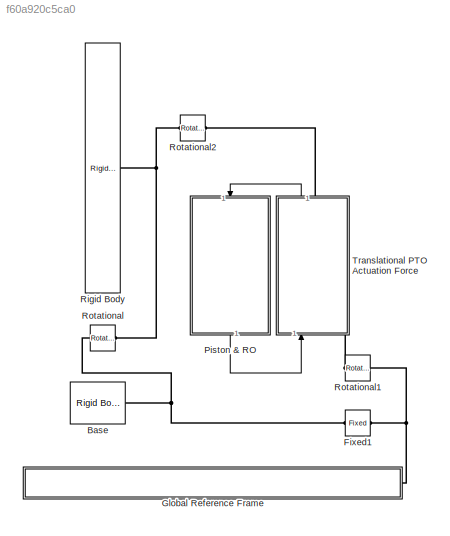
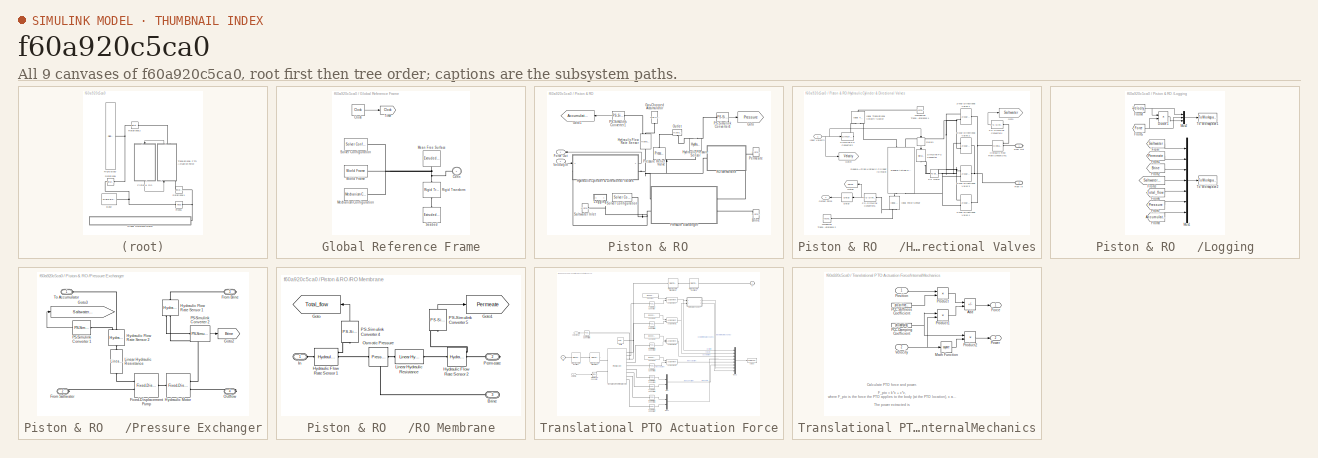
[diagram: thumbnail index - all 9 canvases of the model, root first then tree order]
MODEL slx_f60a920c5ca0
KIND model
CONFIG AbsTol = 1e-3
CONFIG EnableMultiTasking = on
CONFIG FixedStep = 0.01
CONFIG MaxStep = 0.01
CONFIG MinStep = auto
CONFIG RelTol = 1e-3
CONFIG SampleTimeConstraint = Unconstrained
CONFIG SolverName = ode4
CONFIG StartTime = 0
CONFIG StopTime = 300
BLOCK [Reference] Base  REF=WECSim_Lib_Body_Elements/Rigid Body
  AttributesFormatString = %<body>
  Ports = [0, 0, 0, 0, 0, 0, 1]
  SourceBlock = WECSim_Lib_Body_Elements/Rigid Body
  SourceProductName = WEC-Sim
  SourceType = Rigid Body
BLOCK [Reference] Fixed1  REF=WECSim_Lib_Constraints/Fixed
  AttributesFormatString = %<constraint>
  Ports = [0, 0, 0, 0, 0, 1, 1]
  SourceBlock = WECSim_Lib_Constraints/Fixed
  SourceProductName = WEC-Sim
  SourceType = Constraints
BLOCK [SubSystem] Global Reference Frame
  AncestorBlock = WECSim_Lib/Frames/Global Reference Frame
  NameLocation = top
  Ports = [0, 0, 0, 0, 0, 0, 1]
  RequestExecContextInheritance = off
BLOCK [Clock] Global Reference Frame/Clock
BLOCK [PMIOPort] Global Reference Frame/Conn
  Side = Right
BLOCK [Reference] Global Reference Frame/Mean Free Surface  REF=sm_lib/Body Elements/Extruded Solid
  NameLocation = right
  Ports = [0, 0, 0, 0, 0, 0, 1]
  SourceBlock = sm_lib/Body Elements/Extruded Solid
  SourceProductBaseCode = MS
  SourceType = Extruded Solid
BLOCK [Reference] Global Reference Frame/Mechanism Configuration  REF=sm_lib/Utilities/Mechanism
Configuration
  Ports = [0, 0, 0, 0, 0, 0, 1]
  SourceBlock = sm_lib/Utilities/Mechanism\nConfiguration
  SourceProductBaseCode = MS
  SourceType = Mechanism\nConfiguration
BLOCK [Reference] Global Reference Frame/Rigid Transform  REF=sm_lib/Frames and
Transforms/Rigid
Transform
  NameLocation = right
  Ports = [0, 0, 0, 0, 0, 1, 1]
  SourceBlock = sm_lib/Frames and\nTransforms/Rigid\nTransform
  SourceProductBaseCode = MS
  SourceType = Rigid\nTransform
BLOCK [Reference] Global Reference Frame/Seabed  REF=sm_lib/Body Elements/Extruded Solid
  NameLocation = right
  Ports = [0, 0, 0, 0, 0, 0, 1]
  SourceBlock = sm_lib/Body Elements/Extruded Solid
  SourceProductBaseCode = MS
  SourceType = Extruded Solid
BLOCK [Reference] Global Reference Frame/Solver Configuration  REF=nesl_utility/Solver
Configuration
  Ports = [0, 0, 0, 0, 0, 0, 1]
  SourceBlock = nesl_utility/Solver\nConfiguration
  SourceProductBaseCode = PW,SS
  SourceType = Solver\nConfiguration
BLOCK [Goto] Global Reference Frame/Time
  GotoTag = Clock
  TagVisibility = global
BLOCK [Reference] Global Reference Frame/World Frame  REF=sm_lib/Frames and
Transforms/World Frame
  Ports = [0, 0, 0, 0, 0, 0, 1]
  SourceBlock = sm_lib/Frames and\nTransforms/World Frame
  SourceProductBaseCode = MS
  SourceType = World Frame
BLOCK [SubSystem] Piston & RO   
  NameLocation = left
  Ports = [1, 1]
  RequestExecContextInheritance = off
BLOCK [Reference] Piston & RO   /Brine   REF=fl_lib/Hydraulic/Hydraulic Elements/Hydraulic Reference
  Ports = [0, 0, 0, 0, 0, 1]
  SourceBlock = fl_lib/Hydraulic/Hydraulic Elements/Hydraulic Reference
  SourceProductBaseCode = SS
  SourceType = Hydraulic Reference
BLOCK [Outport] Piston & RO   /Force Out
  NameLocation = top
  VectorParamsAs1DForOutWhenUnconnected = off
BLOCK [Reference] Piston & RO   /Gas-Charged Accumulator  REF=sh_lib/Accumulators/Gas-Charged
Accumulator
  NameLocation = right
  Ports = [0, 0, 0, 0, 0, 0, 1]
  SourceBlock = sh_lib/Accumulators/Gas-Charged\nAccumulator
  SourceProductBaseCode = SH
  SourceType = Gas-Charged\nAccumulator
BLOCK [Goto] Piston & RO   /Goto
  GotoTag = Pressure
  TagVisibility = global
BLOCK [Goto] Piston & RO   /Goto1
  GotoTag = Accumulator
  TagVisibility = global
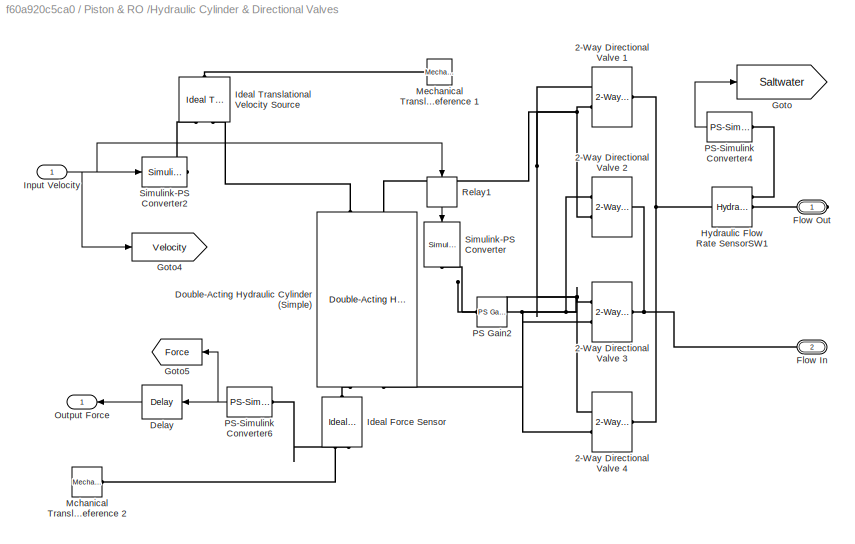
BLOCK [SubSystem] Piston & RO   /Hydraulic Cylinder & Directional Valves
  Ports = [1, 1, 0, 0, 0, 1, 1]
  RequestExecContextInheritance = off
BLOCK [Reference] Piston & RO   /Hydraulic Cylinder & Directional Valves/2-Way Directional Valve 1  REF=sh_lib/Valves/Directional Valves/2-Way Directional
Valve
  Ports = [0, 0, 0, 0, 0, 2, 1]
  SourceBlock = sh_lib/Valves/Directional Valves/2-Way Directional\nValve
  SourceProductBaseCode = SH
  SourceType = 2-Way Directional\nValve
BLOCK [Reference] Piston & RO   /Hydraulic Cylinder & Directional Valves/2-Way Directional Valve 2  REF=sh_lib/Valves/Directional Valves/2-Way Directional
Valve
  Ports = [0, 0, 0, 0, 0, 2, 1]
  SourceBlock = sh_lib/Valves/Directional Valves/2-Way Directional\nValve
  SourceProductBaseCode = SH
  SourceType = 2-Way Directional\nValve
BLOCK [Reference] Piston & RO   /Hydraulic Cylinder & Directional Valves/2-Way Directional Valve 3  REF=sh_lib/Valves/Directional Valves/2-Way Directional
Valve
  Ports = [0, 0, 0, 0, 0, 2, 1]
  SourceBlock = sh_lib/Valves/Directional Valves/2-Way Directional\nValve
  SourceProductBaseCode = SH
  SourceType = 2-Way Directional\nValve
BLOCK [Reference] Piston & RO   /Hydraulic Cylinder & Directional Valves/2-Way Directional Valve 4  REF=sh_lib/Valves/Directional Valves/2-Way Directional
Valve
  Ports = [0, 0, 0, 0, 0, 2, 1]
  SourceBlock = sh_lib/Valves/Directional Valves/2-Way Directional\nValve
  SourceProductBaseCode = SH
  SourceType = 2-Way Directional\nValve
BLOCK [Delay] Piston & RO   /Hydraulic Cylinder & Directional Valves/Delay
  DelayLength = 1
  InitialCondition = 0
  InputPortMap = u0
  Ports = [1, 1]
BLOCK [Reference] Piston & RO   /Hydraulic Cylinder & Directional Valves/Double-Acting Hydraulic Cylinder (Simple)  REF=sh_lib/Hydraulic Cylinders/Double-Acting
Hydraulic Cylinder
(Simple)
  NameLocation = left
  Ports = [0, 0, 0, 0, 0, 2, 2]
  SourceBlock = sh_lib/Hydraulic Cylinders/Double-Acting\nHydraulic Cylinder\n(Simple)
  SourceProductBaseCode = SH
  SourceType = Double-Acting\nHydraulic Cylinder\n(Simple)
BLOCK [PMIOPort] Piston & RO   /Hydraulic Cylinder & Directional Valves/Flow In
  NameLocation = top
  Port = 2
  Side = Left
BLOCK [PMIOPort] Piston & RO   /Hydraulic Cylinder & Directional Valves/Flow Out
  Side = Right
BLOCK [Goto] Piston & RO   /Hydraulic Cylinder & Directional Valves/Goto
  GotoTag = Saltwater
  TagVisibility = global
BLOCK [Goto] Piston & RO   /Hydraulic Cylinder & Directional Valves/Goto4
  GotoTag = Velocity
  TagVisibility = global
BLOCK [Goto] Piston & RO   /Hydraulic Cylinder & Directional Valves/Goto5
  GotoTag = Force
  NameLocation = top
  TagVisibility = global
BLOCK [Reference] Piston & RO   /Hydraulic Cylinder & Directional Valves/Hydraulic Flow Rate SensorSW1  REF=fl_lib/Hydraulic/Hydraulic Sensors/Hydraulic Flow Rate
Sensor
  Ports = [0, 0, 0, 0, 0, 1, 3]
  SourceBlock = fl_lib/Hydraulic/Hydraulic Sensors/Hydraulic Flow Rate\nSensor
  SourceProductBaseCode = SS
  SourceType = Hydraulic Flow Rate\nSensor
BLOCK [Reference] Piston & RO   /Hydraulic Cylinder & Directional Valves/Ideal Force Sensor  REF=fl_lib/Mechanical/Mechanical Sensors/Ideal Force Sensor
  NameLocation = right
  Ports = [0, 0, 0, 0, 0, 1, 2]
  SourceBlock = fl_lib/Mechanical/Mechanical Sensors/Ideal Force Sensor
  SourceProductBaseCode = SS
  SourceType = Ideal Force Sensor
BLOCK [Reference] Piston & RO   /Hydraulic Cylinder & Directional Valves/Ideal Translational Velocity Source  REF=fl_lib/Mechanical/Mechanical Sources/Ideal Translational
Velocity Source
  NameLocation = right
  Ports = [0, 0, 0, 0, 0, 1, 2]
  SourceBlock = fl_lib/Mechanical/Mechanical Sources/Ideal Translational\nVelocity Source
  SourceProductBaseCode = SS
  SourceType = Ideal Translational\nVelocity Source
BLOCK [Inport] Piston & RO   /Hydraulic Cylinder & Directional Valves/Input Velocity
BLOCK [Reference] Piston & RO   /Hydraulic Cylinder & Directional Valves/Mchanical Translational Reference 2  REF=fl_lib/Mechanical/Translational
Elements/Mechanical
Translational
Reference
  NameLocation = top
  Ports = [0, 0, 0, 0, 0, 1]
  SourceBlock = fl_lib/Mechanical/Translational\nElements/Mechanical\nTranslational\nReference
  SourceProductBaseCode = SS
  SourceType = Mechanical\nTranslational\nReference
BLOCK [Reference] Piston & RO   /Hydraulic Cylinder & Directional Valves/Mechanical Translational Reference 1  REF=fl_lib/Mechanical/Translational
Elements/Mechanical
Translational
Reference
  Ports = [0, 0, 0, 0, 0, 1]
  SourceBlock = fl_lib/Mechanical/Translational\nElements/Mechanical\nTranslational\nReference
  SourceProductBaseCode = SS
  SourceType = Mechanical\nTranslational\nReference
BLOCK [Outport] Piston & RO   /Hydraulic Cylinder & Directional Valves/Output Force
  NameLocation = top
  VectorParamsAs1DForOutWhenUnconnected = off
BLOCK [Reference] Piston & RO   /Hydraulic Cylinder & Directional Valves/PS Gain2  REF=fl_ps_legacy_lib/Legacy Physical
Signals/Functions/PS Gain
  Ports = [0, 0, 0, 0, 0, 1, 1]
  SourceBlock = fl_ps_legacy_lib/Legacy Physical\nSignals/Functions/PS Gain
  SourceProductBaseCode = SS
  SourceType = PS Gain
BLOCK [Reference] Piston & RO   /Hydraulic Cylinder & Directional Valves/PS-Simulink Converter4  REF=nesl_utility/PS-Simulink
Converter
  Ports = [0, 1, 0, 0, 0, 1]
  SourceBlock = nesl_utility/PS-Simulink\nConverter
  SourceProductBaseCode = PW,SS
  SourceType = PS-Simulink\nConverter
BLOCK [Reference] Piston & RO   /Hydraulic Cylinder & Directional Valves/PS-Simulink Converter6  REF=nesl_utility/PS-Simulink
Converter
  Ports = [0, 1, 0, 0, 0, 1]
  SourceBlock = nesl_utility/PS-Simulink\nConverter
  SourceProductBaseCode = PW,SS
  SourceType = PS-Simulink\nConverter
BLOCK [Relay] Piston & RO   /Hydraulic Cylinder & Directional Valves/Relay1
  NameLocation = right
  OffOutputValue = -1
  OffSwitchValue = 0
  OnSwitchValue = 0
  ZeroCross = off
BLOCK [Reference] Piston & RO   /Hydraulic Cylinder & Directional Valves/Simulink-PS Converter  REF=nesl_utility/Simulink-PS
Converter
  NameLocation = right
  Ports = [1, 0, 0, 0, 0, 0, 1]
  SourceBlock = nesl_utility/Simulink-PS\nConverter
  SourceProductBaseCode = PW,SS
  SourceType = Simulink-PS\nConverter
BLOCK [Reference] Piston & RO   /Hydraulic Cylinder & Directional Valves/Simulink-PS Converter2  REF=nesl_utility/Simulink-PS
Converter
  Ports = [1, 0, 0, 0, 0, 0, 1]
  SourceBlock = nesl_utility/Simulink-PS\nConverter
  SourceProductBaseCode = PW,SS
  SourceType = Simulink-PS\nConverter
BLOCK [Reference] Piston & RO   /Hydraulic Flow Rate Sensor  REF=fl_lib/Hydraulic/Hydraulic Sensors/Hydraulic Flow Rate
Sensor
  NameLocation = left
  Ports = [0, 0, 0, 0, 0, 1, 3]
  SourceBlock = fl_lib/Hydraulic/Hydraulic Sensors/Hydraulic Flow Rate\nSensor
  SourceProductBaseCode = SS
  SourceType = Hydraulic Flow Rate\nSensor
BLOCK [Reference] Piston & RO   /Hydraulic Pressure Sensor  REF=fl_lib/Hydraulic/Hydraulic Sensors/Hydraulic Pressure
Sensor
  NameLocation = right
  Ports = [0, 0, 0, 0, 0, 1, 2]
  SourceBlock = fl_lib/Hydraulic/Hydraulic Sensors/Hydraulic Pressure\nSensor
  SourceProductBaseCode = SS
  SourceType = Hydraulic Pressure\nSensor
BLOCK [SubSystem] Piston & RO   /Logging
  Ports = []
  RequestExecContextInheritance = off
BLOCK [Product] Piston & RO   /Logging/Divide1
  Inputs = **
  Ports = [2, 1]
BLOCK [From] Piston & RO   /Logging/From
  GotoTag = Saltwater
  TagVisibility = global
BLOCK [From] Piston & RO   /Logging/From1
  GotoTag = Permeate
  TagVisibility = global
BLOCK [From] Piston & RO   /Logging/From2
  GotoTag = Brine
  TagVisibility = global
BLOCK [From] Piston & RO   /Logging/From3
  GotoTag = Saltwater_in_PE
  TagVisibility = global
BLOCK [From] Piston & RO   /Logging/From4
  GotoTag = Velocity
  TagVisibility = global
BLOCK [From] Piston & RO   /Logging/From5
  GotoTag = Force
  TagVisibility = global
BLOCK [From] Piston & RO   /Logging/From6
  GotoTag = Total_flow
  TagVisibility = global
BLOCK [From] Piston & RO   /Logging/From7
  GotoTag = Pressure
  TagVisibility = global
BLOCK [From] Piston & RO   /Logging/From8
  GotoTag = Accumulator
  TagVisibility = global
BLOCK [Mux] Piston & RO   /Logging/Mux1
  DisplayOption = bar
  Inputs = 7
  Ports = [7, 1]
BLOCK [Mux] Piston & RO   /Logging/Mux2
  DisplayOption = bar
  Inputs = 3
  Ports = [3, 1]
BLOCK [ToWorkspace] Piston & RO   /Logging/To Workspace1
  MaxDataPoints = inf
  NameLocation = top
  Ports = [1]
  SampleTime = simu.dtOut
  SaveFormat = Structure With Time
  VariableName = simout
BLOCK [ToWorkspace] Piston & RO   /Logging/To Workspace2
  MaxDataPoints = inf
  NameLocation = top
  Ports = [1]
  SampleTime = simu.dtOut
  SaveFormat = Structure With Time
  VariableName = simout1
BLOCK [Reference] Piston & RO   /Outlet  REF=fl_lib/Hydraulic/Hydraulic Elements/Hydraulic Reference
  NameLocation = left
  Ports = [0, 0, 0, 0, 0, 1]
  SourceBlock = fl_lib/Hydraulic/Hydraulic Elements/Hydraulic Reference
  SourceProductBaseCode = SS
  SourceType = Hydraulic Reference
BLOCK [Reference] Piston & RO   /PS-Simulink Converter1  REF=nesl_utility/PS-Simulink
Converter
  Ports = [0, 1, 0, 0, 0, 1]
  SourceBlock = nesl_utility/PS-Simulink\nConverter
  SourceProductBaseCode = PW,SS
  SourceType = PS-Simulink\nConverter
BLOCK [Reference] Piston & RO   /PS-Simulink Converter4  REF=nesl_utility/PS-Simulink
Converter
  Ports = [0, 1, 0, 0, 0, 1]
  SourceBlock = nesl_utility/PS-Simulink\nConverter
  SourceProductBaseCode = PW,SS
  SourceType = PS-Simulink\nConverter
BLOCK [Reference] Piston & RO   /Permeate  REF=fl_lib/Hydraulic/Hydraulic Elements/Hydraulic Reference
  NameLocation = top
  Ports = [0, 0, 0, 0, 0, 1]
  SourceBlock = fl_lib/Hydraulic/Hydraulic Elements/Hydraulic Reference
  SourceProductBaseCode = SS
  SourceType = Hydraulic Reference
BLOCK [SubSystem] Piston & RO   /Pressure Exchanger
  Ports = [0, 0, 0, 0, 0, 2, 2]
  RequestExecContextInheritance = off
BLOCK [Reference] Piston & RO   /Pressure Exchanger/Fixed-Displacement Pump  REF=sh_lib/Pumps and Motors/Fixed-Displacement
Pump
  Ports = [0, 0, 0, 0, 0, 1, 2]
  SourceBlock = sh_lib/Pumps and Motors/Fixed-Displacement\nPump
  SourceProductBaseCode = SH
  SourceType = Fixed-Displacement\nPump
BLOCK [PMIOPort] Piston & RO   /Pressure Exchanger/From Brine
  Port = 3
  Side = Right
BLOCK [PMIOPort] Piston & RO   /Pressure Exchanger/From Saltwater
  NameLocation = top
  Port = 2
  Side = Left
BLOCK [Goto] Piston & RO   /Pressure Exchanger/Goto2
  GotoTag = Brine
  TagVisibility = global
BLOCK [Goto] Piston & RO   /Pressure Exchanger/Goto3
  GotoTag = Saltwater_in_PE
  TagVisibility = global
BLOCK [Reference] Piston & RO   /Pressure Exchanger/Hydraulic Flow Rate Sensor 1  REF=fl_lib/Hydraulic/Hydraulic Sensors/Hydraulic Flow Rate
Sensor
  NameLocation = left
  Ports = [0, 0, 0, 0, 0, 1, 3]
  SourceBlock = fl_lib/Hydraulic/Hydraulic Sensors/Hydraulic Flow Rate\nSensor
  SourceProductBaseCode = SS
  SourceType = Hydraulic Flow Rate\nSensor
BLOCK [Reference] Piston & RO   /Pressure Exchanger/Hydraulic Flow Rate Sensor 2  REF=fl_lib/Hydraulic/Hydraulic Sensors/Hydraulic Flow Rate
Sensor
  NameLocation = right
  Ports = [0, 0, 0, 0, 0, 1, 3]
  SourceBlock = fl_lib/Hydraulic/Hydraulic Sensors/Hydraulic Flow Rate\nSensor
  SourceProductBaseCode = SS
  SourceType = Hydraulic Flow Rate\nSensor
BLOCK [Reference] Piston & RO   /Pressure Exchanger/Hydraulic Motor  REF=sh_lib/Pumps and Motors/Fixed-Displacement
Motor
  NameLocation = top
  Ports = [0, 0, 0, 0, 0, 2, 1]
  SourceBlock = sh_lib/Pumps and Motors/Fixed-Displacement\nMotor
  SourceProductBaseCode = SH
  SourceType = Fixed-Displacement\nMotor
BLOCK [Reference] Piston & RO   /Pressure Exchanger/Linear Hydraulic Resistance  REF=fl_lib/Hydraulic/Hydraulic Elements/Linear Hydraulic
Resistance
  NameLocation = left
  Ports = [0, 0, 0, 0, 0, 1, 1]
  SourceBlock = fl_lib/Hydraulic/Hydraulic Elements/Linear Hydraulic\nResistance
  SourceProductBaseCode = SS
  SourceType = Linear Hydraulic\nResistance
BLOCK [PMIOPort] Piston & RO   /Pressure Exchanger/Outflow
  NameLocation = top
  Port = 4
  Side = Right
BLOCK [Reference] Piston & RO   /Pressure Exchanger/PS-Simulink Converter 1  REF=nesl_utility/PS-Simulink
Converter
  Ports = [0, 1, 0, 0, 0, 1]
  SourceBlock = nesl_utility/PS-Simulink\nConverter
  SourceProductBaseCode = PW,SS
  SourceType = PS-Simulink\nConverter
BLOCK [Reference] Piston & RO   /Pressure Exchanger/PS-Simulink Converter 2  REF=nesl_utility/PS-Simulink
Converter
  NameLocation = top
  Ports = [0, 1, 0, 0, 0, 1]
  SourceBlock = nesl_utility/PS-Simulink\nConverter
  SourceProductBaseCode = PW,SS
  SourceType = PS-Simulink\nConverter
BLOCK [PMIOPort] Piston & RO   /Pressure Exchanger/To Accumulator
  Side = Left
BLOCK [Reference] Piston & RO   /Pressure Relief Valve  REF=sh_lib/Valves/Pressure Control
Valves/Pressure Relief
Valve
  NameLocation = right
  Ports = [0, 0, 0, 0, 0, 1, 1]
  SourceBlock = sh_lib/Valves/Pressure Control\nValves/Pressure Relief\nValve
  SourceProductBaseCode = SH
  SourceType = Pressure Relief\nValve
BLOCK [SubSystem] Piston & RO   /RO Membrane
  Ports = [0, 0, 0, 0, 0, 1, 2]
  RequestExecContextInheritance = off
BLOCK [PMIOPort] Piston & RO   /RO Membrane/Brine
  NameLocation = top
  Port = 3
  Side = Right
BLOCK [Goto] Piston & RO   /RO Membrane/Goto
  GotoTag = Total_flow
  NameLocation = top
  TagVisibility = global
BLOCK [Goto] Piston & RO   /RO Membrane/Goto1
  GotoTag = Permeate
  TagVisibility = global
BLOCK [Reference] Piston & RO   /RO Membrane/Hydraulic Flow Rate Sensor 1  REF=fl_lib/Hydraulic/Hydraulic Sensors/Hydraulic Flow Rate
Sensor
  Ports = [0, 0, 0, 0, 0, 1, 3]
  SourceBlock = fl_lib/Hydraulic/Hydraulic Sensors/Hydraulic Flow Rate\nSensor
  SourceProductBaseCode = SS
  SourceType = Hydraulic Flow Rate\nSensor
BLOCK [Reference] Piston & RO   /RO Membrane/Hydraulic Flow Rate Sensor 2  REF=fl_lib/Hydraulic/Hydraulic Sensors/Hydraulic Flow Rate
Sensor
  Ports = [0, 0, 0, 0, 0, 1, 3]
  SourceBlock = fl_lib/Hydraulic/Hydraulic Sensors/Hydraulic Flow Rate\nSensor
  SourceProductBaseCode = SS
  SourceType = Hydraulic Flow Rate\nSensor
BLOCK [PMIOPort] Piston & RO   /RO Membrane/In
  Side = Left
BLOCK [Reference] Piston & RO   /RO Membrane/Linear Hydraulic Resistance  REF=fl_lib/Hydraulic/Hydraulic Elements/Linear Hydraulic
Resistance
  Ports = [0, 0, 0, 0, 0, 1, 1]
  SourceBlock = fl_lib/Hydraulic/Hydraulic Elements/Linear Hydraulic\nResistance
  SourceProductBaseCode = SS
  SourceType = Linear Hydraulic\nResistance
BLOCK [Reference] Piston & RO   /RO Membrane/Osmotic Pressure  REF=sh_lib/Valves/Pressure Control
Valves/Pressure Relief
Valve
  NameLocation = top
  Ports = [0, 0, 0, 0, 0, 1, 1]
  SourceBlock = sh_lib/Valves/Pressure Control\nValves/Pressure Relief\nValve
  SourceProductBaseCode = SH
  SourceType = Pressure Relief\nValve
BLOCK [Reference] Piston & RO   /RO Membrane/PS-Simulink Converter 4  REF=nesl_utility/PS-Simulink
Converter
  NameLocation = left
  Ports = [0, 1, 0, 0, 0, 1]
  SourceBlock = nesl_utility/PS-Simulink\nConverter
  SourceProductBaseCode = PW,SS
  SourceType = PS-Simulink\nConverter
BLOCK [Reference] Piston & RO   /RO Membrane/PS-Simulink Converter 5  REF=nesl_utility/PS-Simulink
Converter
  NameLocation = left
  Ports = [0, 1, 0, 0, 0, 1]
  SourceBlock = nesl_utility/PS-Simulink\nConverter
  SourceProductBaseCode = PW,SS
  SourceType = PS-Simulink\nConverter
BLOCK [PMIOPort] Piston & RO   /RO Membrane/Permeate
  Port = 2
  Side = Right
BLOCK [Reference] Piston & RO   /Saltwater Inlet  REF=fl_lib/Hydraulic/Hydraulic Elements/Hydraulic Reference
  Ports = [0, 0, 0, 0, 0, 1]
  SourceBlock = fl_lib/Hydraulic/Hydraulic Elements/Hydraulic Reference
  SourceProductBaseCode = SS
  SourceType = Hydraulic Reference
BLOCK [Reference] Piston & RO   /Solver Configuration  REF=nesl_utility/Solver
Configuration
  Ports = [0, 0, 0, 0, 0, 0, 1]
  SourceBlock = nesl_utility/Solver\nConfiguration
  SourceProductBaseCode = PW,SS
  SourceType = Solver\nConfiguration
BLOCK [Inport] Piston & RO   /Velocity In
BLOCK [Reference] Rigid Body  REF=WECSim_Lib_Body_Elements/Rigid Body
  AttributesFormatString = %<body>
  Ports = [0, 0, 0, 0, 0, 0, 1]
  SourceBlock = WECSim_Lib_Body_Elements/Rigid Body
  SourceProductName = WEC-Sim
  SourceType = Rigid Body
BLOCK [Reference] Rotational  REF=WECSim_Lib_Constraints/Rotational
  AttributesFormatString = %<constraint>
  Ports = [0, 0, 0, 0, 0, 1, 1]
  SourceBlock = WECSim_Lib_Constraints/Rotational
  SourceProductName = WEC-Sim
  SourceType = Constraints
BLOCK [Reference] Rotational1  REF=WECSim_Lib_Constraints/Rotational
  AttributesFormatString = %<constraint>
  Ports = [0, 0, 0, 0, 0, 1, 1]
  SourceBlock = WECSim_Lib_Constraints/Rotational
  SourceProductName = WEC-Sim
  SourceType = Constraints
BLOCK [Reference] Rotational2  REF=WECSim_Lib_Constraints/Rotational
  AttributesFormatString = %<constraint>
  Ports = [0, 0, 0, 0, 0, 1, 1]
  SourceBlock = WECSim_Lib_Constraints/Rotational
  SourceProductName = WEC-Sim
  SourceType = Constraints
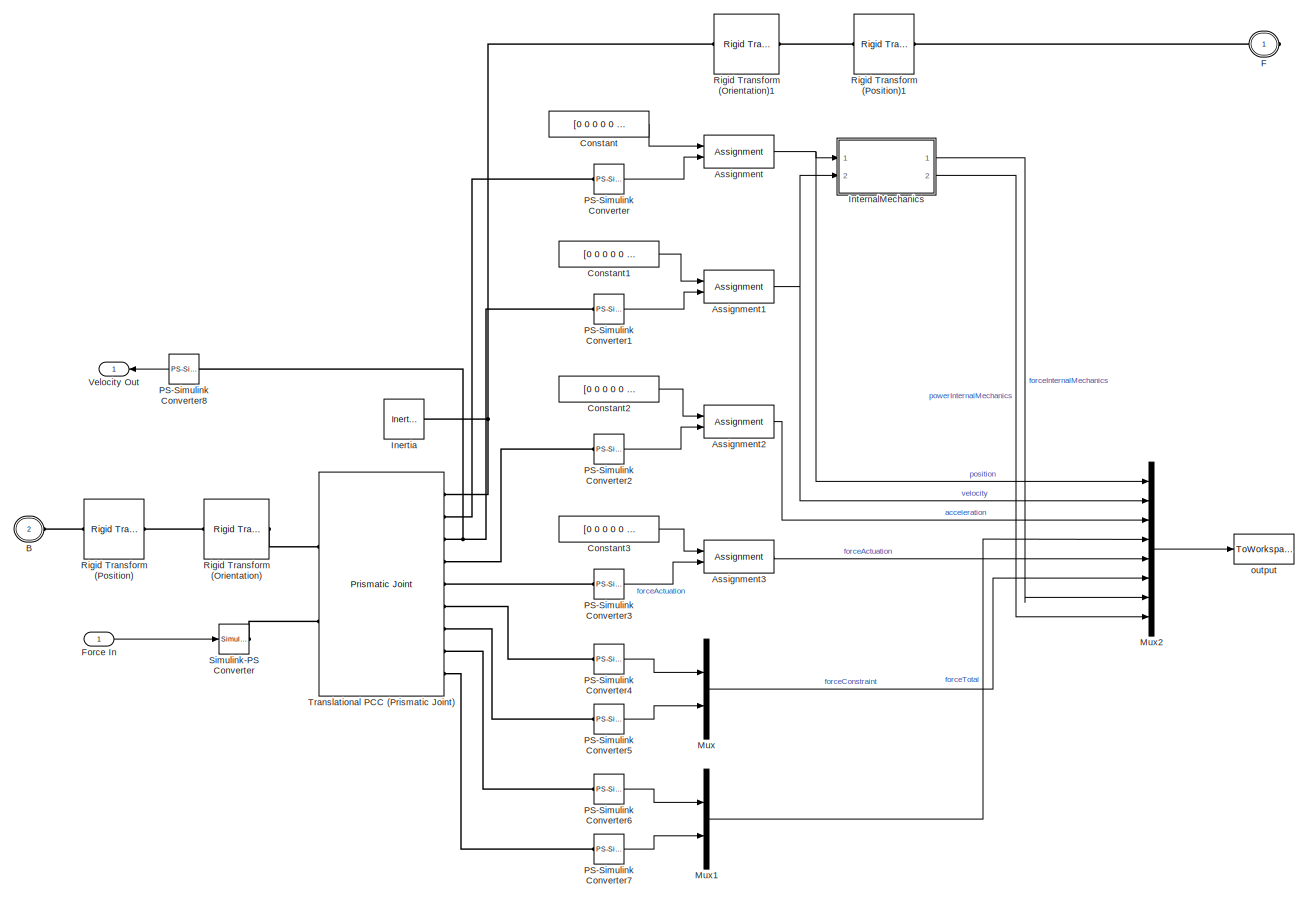
[diagram: Translational PTO Actuation Force - part 1/1, most of the canvas]
BLOCK [SubSystem] Translational PTO Actuation Force
  AncestorBlock = WECSim_Lib/PTOs/Translational PTO\nActuation Force
  AttributesFormatString = %<pto>
  NameLocation = right
  Ports = [1, 1, 0, 0, 0, 1, 1]
  RequestExecContextInheritance = off
BLOCK [Assignment] Translational PTO Actuation Force/Assignment
  IndexOptions = Index vector (dialog)
  Indices = 3
  OutputSizes = 1
  Ports = [2, 1]
BLOCK [Assignment] Translational PTO Actuation Force/Assignment1
  IndexOptions = Index vector (dialog)
  Indices = 3
  OutputSizes = 1
  Ports = [2, 1]
BLOCK [Assignment] Translational PTO Actuation Force/Assignment2
  IndexOptions = Index vector (dialog)
  Indices = 3
  OutputSizes = 1
  Ports = [2, 1]
BLOCK [Assignment] Translational PTO Actuation Force/Assignment3
  IndexOptions = Index vector (dialog)
  Indices = 3
  OutputSizes = 1
  Ports = [2, 1]
BLOCK [PMIOPort] Translational PTO Actuation Force/B
  Port = 2
  Side = Left
BLOCK [Constant] Translational PTO Actuation Force/Constant
  Value = [0 0 0 0 0 0]
BLOCK [Constant] Translational PTO Actuation Force/Constant1
  Value = [0 0 0 0 0 0]
BLOCK [Constant] Translational PTO Actuation Force/Constant2
  Value = [0 0 0 0 0 0]
BLOCK [Constant] Translational PTO Actuation Force/Constant3
  Value = [0 0 0 0 0 0]
BLOCK [PMIOPort] Translational PTO Actuation Force/F
  Side = Right
BLOCK [Inport] Translational PTO Actuation Force/Force In
BLOCK [Reference] Translational PTO Actuation Force/Inertia  REF=sm_lib/Body Elements/Inertia
  Ports = [0, 0, 0, 0, 0, 0, 1]
  SourceBlock = sm_lib/Body Elements/Inertia
  SourceProductBaseCode = MS
  SourceType = Inertia
BLOCK [SubSystem] Translational PTO Actuation Force/InternalMechanics
  Ports = [2, 2]
  RequestExecContextInheritance = off
BLOCK [Sum] Translational PTO Actuation Force/InternalMechanics/Add
  IconShape = rectangular
  Inputs = --
  Ports = [2, 1]
BLOCK [Outport] Translational PTO Actuation Force/InternalMechanics/Force
  VectorParamsAs1DForOutWhenUnconnected = off
BLOCK [Math] Translational PTO Actuation Force/InternalMechanics/Math Function
  Operator = square
  Ports = [1, 1]
  SignedPower = on
BLOCK [Constant] Translational PTO Actuation Force/InternalMechanics/PCC Damping Coefficient
  Value = pto.damping
BLOCK [Constant] Translational PTO Actuation Force/InternalMechanics/PCC Stiffness Coefficient
  Value = pto.stiffness
BLOCK [Inport] Translational PTO Actuation Force/InternalMechanics/Position
BLOCK [Outport] Translational PTO Actuation Force/InternalMechanics/Power
  Port = 2
  VectorParamsAs1DForOutWhenUnconnected = off
BLOCK [Product] Translational PTO Actuation Force/InternalMechanics/Product
  Inputs = **
  Ports = [2, 1]
BLOCK [Product] Translational PTO Actuation Force/InternalMechanics/Product1
  Inputs = **
  Ports = [2, 1]
BLOCK [Product] Translational PTO Actuation Force/InternalMechanics/Product2
  Inputs = **
  Ports = [2, 1]
BLOCK [Inport] Translational PTO Actuation Force/InternalMechanics/Velocity
  Port = 2
BLOCK [Mux] Translational PTO Actuation Force/Mux
  DisplayOption = bar
  Inputs = 2
  Ports = [2, 1]
BLOCK [Mux] Translational PTO Actuation Force/Mux1
  DisplayOption = bar
  Inputs = 2
  Ports = [2, 1]
BLOCK [Mux] Translational PTO Actuation Force/Mux2
  DisplayOption = bar
  Inputs = 8
  Ports = [8, 1]
BLOCK [Reference] Translational PTO Actuation Force/PS-Simulink Converter  REF=nesl_utility/PS-Simulink
Converter
  Ports = [0, 1, 0, 0, 0, 1]
  SourceBlock = nesl_utility/PS-Simulink\nConverter
  SourceProductBaseCode = PW,SS
  SourceType = PS-Simulink\nConverter
BLOCK [Reference] Translational PTO Actuation Force/PS-Simulink Converter1  REF=nesl_utility/PS-Simulink
Converter
  Ports = [0, 1, 0, 0, 0, 1]
  SourceBlock = nesl_utility/PS-Simulink\nConverter
  SourceProductBaseCode = PW,SS
  SourceType = PS-Simulink\nConverter
BLOCK [Reference] Translational PTO Actuation Force/PS-Simulink Converter2  REF=nesl_utility/PS-Simulink
Converter
  Ports = [0, 1, 0, 0, 0, 1]
  SourceBlock = nesl_utility/PS-Simulink\nConverter
  SourceProductBaseCode = PW,SS
  SourceType = PS-Simulink\nConverter
BLOCK [Reference] Translational PTO Actuation Force/PS-Simulink Converter3  REF=nesl_utility/PS-Simulink
Converter
  Ports = [0, 1, 0, 0, 0, 1]
  SourceBlock = nesl_utility/PS-Simulink\nConverter
  SourceProductBaseCode = PW,SS
  SourceType = PS-Simulink\nConverter
BLOCK [Reference] Translational PTO Actuation Force/PS-Simulink Converter4  REF=nesl_utility/PS-Simulink
Converter
  Ports = [0, 1, 0, 0, 0, 1]
  SourceBlock = nesl_utility/PS-Simulink\nConverter
  SourceProductBaseCode = PW,SS
  SourceType = PS-Simulink\nConverter
BLOCK [Reference] Translational PTO Actuation Force/PS-Simulink Converter5  REF=nesl_utility/PS-Simulink
Converter
  Ports = [0, 1, 0, 0, 0, 1]
  SourceBlock = nesl_utility/PS-Simulink\nConverter
  SourceProductBaseCode = PW,SS
  SourceType = PS-Simulink\nConverter
BLOCK [Reference] Translational PTO Actuation Force/PS-Simulink Converter6  REF=nesl_utility/PS-Simulink
Converter
  Ports = [0, 1, 0, 0, 0, 1]
  SourceBlock = nesl_utility/PS-Simulink\nConverter
  SourceProductBaseCode = PW,SS
  SourceType = PS-Simulink\nConverter
BLOCK [Reference] Translational PTO Actuation Force/PS-Simulink Converter7  REF=nesl_utility/PS-Simulink
Converter
  Ports = [0, 1, 0, 0, 0, 1]
  SourceBlock = nesl_utility/PS-Simulink\nConverter
  SourceProductBaseCode = PW,SS
  SourceType = PS-Simulink\nConverter
BLOCK [Reference] Translational PTO Actuation Force/PS-Simulink Converter8  REF=nesl_utility/PS-Simulink
Converter
  Ports = [0, 1, 0, 0, 0, 1]
  SourceBlock = nesl_utility/PS-Simulink\nConverter
  SourceProductBaseCode = PW,SS
  SourceType = PS-Simulink\nConverter
BLOCK [Reference] Translational PTO Actuation Force/Rigid Transform (Orientation)  REF=sm_lib/Frames and
Transforms/Rigid
Transform
  Ports = [0, 0, 0, 0, 0, 1, 1]
  SourceBlock = sm_lib/Frames and\nTransforms/Rigid\nTransform
  SourceProductBaseCode = MS
  SourceType = Rigid\nTransform
BLOCK [Reference] Translational PTO Actuation Force/Rigid Transform (Orientation)1  REF=sm_lib/Frames and
Transforms/Rigid
Transform
  Ports = [0, 0, 0, 0, 0, 1, 1]
  SourceBlock = sm_lib/Frames and\nTransforms/Rigid\nTransform
  SourceProductBaseCode = MS
  SourceType = Rigid\nTransform
BLOCK [Reference] Translational PTO Actuation Force/Rigid Transform (Position)  REF=sm_lib/Frames and
Transforms/Rigid
Transform
  Ports = [0, 0, 0, 0, 0, 1, 1]
  SourceBlock = sm_lib/Frames and\nTransforms/Rigid\nTransform
  SourceProductBaseCode = MS
  SourceType = Rigid\nTransform
BLOCK [Reference] Translational PTO Actuation Force/Rigid Transform (Position)1  REF=sm_lib/Frames and
Transforms/Rigid
Transform
  Ports = [0, 0, 0, 0, 0, 1, 1]
  SourceBlock = sm_lib/Frames and\nTransforms/Rigid\nTransform
  SourceProductBaseCode = MS
  SourceType = Rigid\nTransform
BLOCK [Reference] Translational PTO Actuation Force/Simulink-PS Converter  REF=nesl_utility/Simulink-PS
Converter
  Ports = [1, 0, 0, 0, 0, 0, 1]
  SourceBlock = nesl_utility/Simulink-PS\nConverter
  SourceProductBaseCode = PW,SS
  SourceType = Simulink-PS\nConverter
BLOCK [Reference] Translational PTO Actuation Force/Translational PCC (Prismatic Joint)  REF=sm_lib/Joints/Prismatic
Joint
  Ports = [0, 0, 0, 0, 0, 2, 9]
  SourceBlock = sm_lib/Joints/Prismatic\nJoint
  SourceProductBaseCode = MS
  SourceType = Prismatic\nJoint
BLOCK [Outport] Translational PTO Actuation Force/Velocity Out
  VectorParamsAs1DForOutWhenUnconnected = off
BLOCK [ToWorkspace] Translational PTO Actuation Force/output
  Decimation = round(simu.dtOut/simu.dt,0)
  FixptAsFi = on
  MaxDataPoints = inf
  Ports = [1]
  SampleTime = -1
  SaveFormat = Structure With Time
  VariableName = pto1_out
ANNOTATION Translational PTO Actuation Force/InternalMechanics: Calculate PTO force and power. F_pto = k*x + c*v, where F_pto is the force the PTO applies to the body (at the PTO location), x and v are the joint position and velocity. The power extracted is P = c * v^2
LINE Piston & RO   :1 -> Translational PTO Actuation Force:1
LINE Translational PTO Actuation Force:1 -> Piston & RO   :1
PNET net1: Base:RConn1 -- Fixed1:RConn1 -- Rotational:LConn1
PNET net2: Fixed1:LConn1 -- Global Reference Frame:RConn1 -- Rotational1:LConn1
PNET net3: Rigid Body:RConn1 -- Rotational2:RConn1 -- Rotational:RConn1
PLINE Rotational1:RConn1 -- Translational PTO Actuation Force:LConn1
PLINE Rotational2:LConn1 -- Translational PTO Actuation Force:RConn1
note: PNET lines group multi-terminal physical nets as a canonical sorted terminal list (undirected conserving connections); 2-terminal nets keep the pairwise PLINE form
